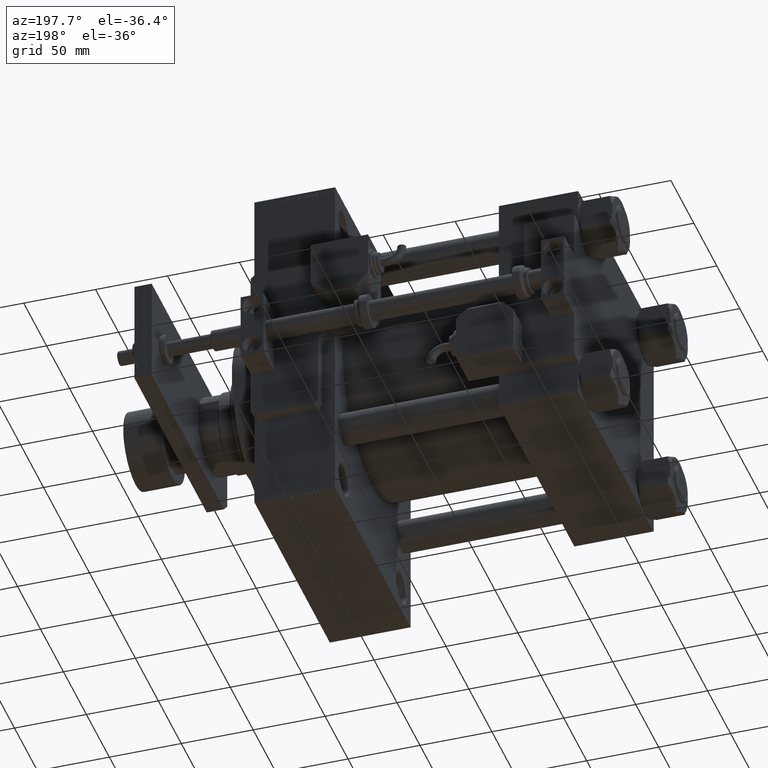
[diagram: clean part render]
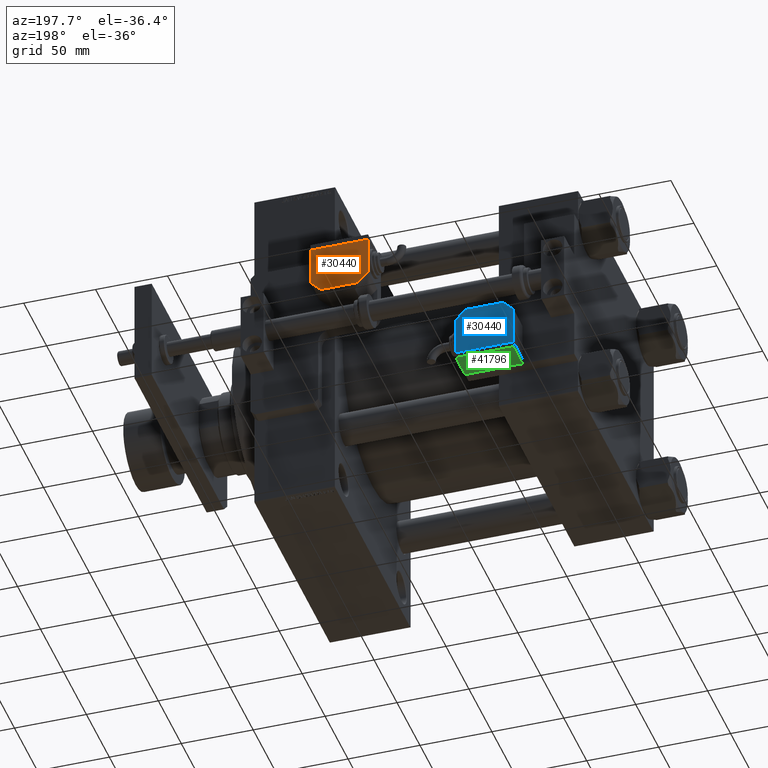
[diagram: same view with three faces highlighted in distinct colors, each labeled with its STEP entity id]
A machine part, auxiliary view with three faces highlighted in distinct colors.
Their STEP definitions:

[orange] entity #30440 — the highlighted planar face has unit normal (-0, 1, -0).
#558 = VERTEX_POINT ( 'NONE', #27781 ) ;
#1212 = VECTOR ( 'NONE', #5521, 1000.000000000000114 ) ;
#1815 = VECTOR ( 'NONE', #12514, 1000.000000000000000 ) ;
#2854 = LINE ( 'NONE', #19233, #49040 ) ;
#2965 = CARTESIAN_POINT ( 'NONE',  ( -19.99999999999993960, 13.49999999999986500, 10.00000000000000000 ) ) ;
#3285 = CARTESIAN_POINT ( 'NONE',  ( 12.99999999999999112, 20.50000000000009592, 10.00000000000000000 ) ) ;
#4728 = EDGE_CURVE ( 'NONE', #46785, #10609, #10763, .T. ) ;
#4824 = CARTESIAN_POINT ( 'NONE',  ( -19.99999999999993960, 13.49999999999986500, 10.00000000000000000 ) ) ;
#5038 = DIRECTION ( 'NONE',  ( -1.284980352575421081E-16, -1.000000000000000000, -0.000000000000000000 ) ) ;
#5521 = DIRECTION ( 'NONE',  ( -0.7071067811865479058, 0.7071067811865470176, -0.000000000000000000 ) ) ;
#8018 = AXIS2_PLACEMENT_3D ( 'NONE', #51463, #34305, #34593 ) ;
#8897 = VERTEX_POINT ( 'NONE', #13429 ) ;
#9116 = ORIENTED_EDGE ( 'NONE', *, *, #17609, .T. ) ;
#9415 = ORIENTED_EDGE ( 'NONE', *, *, #18502, .T. ) ;
#9439 = CARTESIAN_POINT ( 'NONE',  ( -19.99999999999994316, -13.49999999999996092, 10.00000000000000000 ) ) ;
#9819 = ORIENTED_EDGE ( 'NONE', *, *, #50053, .T. ) ;
#10484 = VECTOR ( 'NONE', #5038, 1000.000000000000000 ) ;
#10609 = VERTEX_POINT ( 'NONE', #25549 ) ;
#10763 = LINE ( 'NONE', #19720, #16137 ) ;
#12256 = LINE ( 'NONE', #36748, #1815 ) ;
#12514 = DIRECTION ( 'NONE',  ( -1.000000000000000000, 0.000000000000000000, 0.000000000000000000 ) ) ;
#13429 = CARTESIAN_POINT ( 'NONE',  ( -19.99999999999994316, -13.49999999999996092, 10.00000000000000000 ) ) ;
#16137 = VECTOR ( 'NONE', #23011, 1000.000000000000000 ) ;
#17609 = EDGE_CURVE ( 'NONE', #10609, #8897, #35290, .T. ) ;
#17792 = LINE ( 'NONE', #29758, #1212 ) ;
#18502 = EDGE_CURVE ( 'NONE', #8897, #37845, #38822, .T. ) ;
#19233 = CARTESIAN_POINT ( 'NONE',  ( 20.00000000000005329, -13.49999999999996092, 10.00000000000000000 ) ) ;
#19720 = CARTESIAN_POINT ( 'NONE',  ( -19.99999999999994316, -13.49999999999996092, 10.00000000000000000 ) ) ;
#20018 = DIRECTION ( 'NONE',  ( 1.284980352575412699E-16, 1.000000000000000000, 0.000000000000000000 ) ) ;
#22161 = EDGE_CURVE ( 'NONE', #27344, #42164, #12256, .T. ) ;
#23011 = DIRECTION ( 'NONE',  ( -1.284980352575421081E-16, -1.000000000000000000, -0.000000000000000000 ) ) ;
#25549 = CARTESIAN_POINT ( 'NONE',  ( -19.99999999999993960, 2.569960705150834076E-15, 10.00000000000000000 ) ) ;
#25756 = CARTESIAN_POINT ( 'NONE',  ( -19.99999999999994316, -13.49999999999996092, 10.00000000000000000 ) ) ;
#26839 = VECTOR ( 'NONE', #39232, 1000.000000000000000 ) ;
#27344 = VERTEX_POINT ( 'NONE', #3285 ) ;
#27781 = CARTESIAN_POINT ( 'NONE',  ( 20.00000000000005684, 13.50000000000003730, 10.00000000000000000 ) ) ;
#29380 = CARTESIAN_POINT ( 'NONE',  ( -12.99999999999994138, 20.50000000000009592, 10.00000000000000000 ) ) ;
#29477 = VECTOR ( 'NONE', #35025, 1000.000000000000000 ) ;
#29758 = CARTESIAN_POINT ( 'NONE',  ( 9.999999999999984013, 23.50000000000009592, 10.00000000000000000 ) ) ;
#30440 = ADVANCED_FACE ( 'NONE', ( #38647 ), #33757, .T. ) ;
#31860 = LINE ( 'NONE', #2965, #26839 ) ;
#33757 = PLANE ( 'NONE',  #8018 ) ;
#33843 = ORIENTED_EDGE ( 'NONE', *, *, #37589, .T. ) ;
#34305 = DIRECTION ( 'NONE',  ( 0.000000000000000000, 0.000000000000000000, 1.000000000000000000 ) ) ;
#34593 = DIRECTION ( 'NONE',  ( 1.000000000000000000, 0.000000000000000000, -0.000000000000000000 ) ) ;
#35025 = DIRECTION ( 'NONE',  ( 1.000000000000000000, 0.000000000000000000, 0.000000000000000000 ) ) ;
#35072 = EDGE_CURVE ( 'NONE', #37845, #558, #2854, .T. ) ;
#35290 = LINE ( 'NONE', #25756, #10484 ) ;
#36748 = CARTESIAN_POINT ( 'NONE',  ( -10.00000000000004086, 20.50000000000009592, 10.00000000000000000 ) ) ;
#37038 = ORIENTED_EDGE ( 'NONE', *, *, #35072, .T. ) ;
#37589 = EDGE_CURVE ( 'NONE', #558, #27344, #17792, .T. ) ;
#37592 = CARTESIAN_POINT ( 'NONE',  ( 20.00000000000005329, -13.49999999999996092, 10.00000000000000000 ) ) ;
#37845 = VERTEX_POINT ( 'NONE', #37592 ) ;
#38647 = FACE_OUTER_BOUND ( 'NONE', #47300, .T. ) ;
#38822 = LINE ( 'NONE', #9439, #29477 ) ;
#39232 = DIRECTION ( 'NONE',  ( -0.7071067811865356934, -0.7071067811865593411, -0.000000000000000000 ) ) ;
#42164 = VERTEX_POINT ( 'NONE', #29380 ) ;
#46785 = VERTEX_POINT ( 'NONE', #4824 ) ;
#47300 = EDGE_LOOP ( 'NONE', ( #33843, #52970, #9819, #50579, #9116, #9415, #37038 ) ) ;
#49040 = VECTOR ( 'NONE', #20018, 1000.000000000000000 ) ;
#50053 = EDGE_CURVE ( 'NONE', #42164, #46785, #31860, .T. ) ;
#50579 = ORIENTED_EDGE ( 'NONE', *, *, #4728, .T. ) ;
#51463 = CARTESIAN_POINT ( 'NONE',  ( 0.000000000000000000, 0.000000000000000000, 10.00000000000000000 ) ) ;
#52970 = ORIENTED_EDGE ( 'NONE', *, *, #22161, .T. ) ;

[blue] entity #30440 — the highlighted planar face has unit normal (0, 1, 0).
#558 = VERTEX_POINT ( 'NONE', #27781 ) ;
#1212 = VECTOR ( 'NONE', #5521, 1000.000000000000114 ) ;
#1815 = VECTOR ( 'NONE', #12514, 1000.000000000000000 ) ;
#2854 = LINE ( 'NONE', #19233, #49040 ) ;
#2965 = CARTESIAN_POINT ( 'NONE',  ( -19.99999999999993960, 13.49999999999986500, 10.00000000000000000 ) ) ;
#3285 = CARTESIAN_POINT ( 'NONE',  ( 12.99999999999999112, 20.50000000000009592, 10.00000000000000000 ) ) ;
#4728 = EDGE_CURVE ( 'NONE', #46785, #10609, #10763, .T. ) ;
#4824 = CARTESIAN_POINT ( 'NONE',  ( -19.99999999999993960, 13.49999999999986500, 10.00000000000000000 ) ) ;
#5038 = DIRECTION ( 'NONE',  ( -1.284980352575421081E-16, -1.000000000000000000, -0.000000000000000000 ) ) ;
#5521 = DIRECTION ( 'NONE',  ( -0.7071067811865479058, 0.7071067811865470176, -0.000000000000000000 ) ) ;
#8018 = AXIS2_PLACEMENT_3D ( 'NONE', #51463, #34305, #34593 ) ;
#8897 = VERTEX_POINT ( 'NONE', #13429 ) ;
#9116 = ORIENTED_EDGE ( 'NONE', *, *, #17609, .T. ) ;
#9415 = ORIENTED_EDGE ( 'NONE', *, *, #18502, .T. ) ;
#9439 = CARTESIAN_POINT ( 'NONE',  ( -19.99999999999994316, -13.49999999999996092, 10.00000000000000000 ) ) ;
#9819 = ORIENTED_EDGE ( 'NONE', *, *, #50053, .T. ) ;
#10484 = VECTOR ( 'NONE', #5038, 1000.000000000000000 ) ;
#10609 = VERTEX_POINT ( 'NONE', #25549 ) ;
#10763 = LINE ( 'NONE', #19720, #16137 ) ;
#12256 = LINE ( 'NONE', #36748, #1815 ) ;
#12514 = DIRECTION ( 'NONE',  ( -1.000000000000000000, 0.000000000000000000, 0.000000000000000000 ) ) ;
#13429 = CARTESIAN_POINT ( 'NONE',  ( -19.99999999999994316, -13.49999999999996092, 10.00000000000000000 ) ) ;
#16137 = VECTOR ( 'NONE', #23011, 1000.000000000000000 ) ;
#17609 = EDGE_CURVE ( 'NONE', #10609, #8897, #35290, .T. ) ;
#17792 = LINE ( 'NONE', #29758, #1212 ) ;
#18502 = EDGE_CURVE ( 'NONE', #8897, #37845, #38822, .T. ) ;
#19233 = CARTESIAN_POINT ( 'NONE',  ( 20.00000000000005329, -13.49999999999996092, 10.00000000000000000 ) ) ;
#19720 = CARTESIAN_POINT ( 'NONE',  ( -19.99999999999994316, -13.49999999999996092, 10.00000000000000000 ) ) ;
#20018 = DIRECTION ( 'NONE',  ( 1.284980352575412699E-16, 1.000000000000000000, 0.000000000000000000 ) ) ;
#22161 = EDGE_CURVE ( 'NONE', #27344, #42164, #12256, .T. ) ;
#23011 = DIRECTION ( 'NONE',  ( -1.284980352575421081E-16, -1.000000000000000000, -0.000000000000000000 ) ) ;
#25549 = CARTESIAN_POINT ( 'NONE',  ( -19.99999999999993960, 2.569960705150834076E-15, 10.00000000000000000 ) ) ;
#25756 = CARTESIAN_POINT ( 'NONE',  ( -19.99999999999994316, -13.49999999999996092, 10.00000000000000000 ) ) ;
#26839 = VECTOR ( 'NONE', #39232, 1000.000000000000000 ) ;
#27344 = VERTEX_POINT ( 'NONE', #3285 ) ;
#27781 = CARTESIAN_POINT ( 'NONE',  ( 20.00000000000005684, 13.50000000000003730, 10.00000000000000000 ) ) ;
#29380 = CARTESIAN_POINT ( 'NONE',  ( -12.99999999999994138, 20.50000000000009592, 10.00000000000000000 ) ) ;
#29477 = VECTOR ( 'NONE', #35025, 1000.000000000000000 ) ;
#29758 = CARTESIAN_POINT ( 'NONE',  ( 9.999999999999984013, 23.50000000000009592, 10.00000000000000000 ) ) ;
#30440 = ADVANCED_FACE ( 'NONE', ( #38647 ), #33757, .T. ) ;
#31860 = LINE ( 'NONE', #2965, #26839 ) ;
#33757 = PLANE ( 'NONE',  #8018 ) ;
#33843 = ORIENTED_EDGE ( 'NONE', *, *, #37589, .T. ) ;
#34305 = DIRECTION ( 'NONE',  ( 0.000000000000000000, 0.000000000000000000, 1.000000000000000000 ) ) ;
#34593 = DIRECTION ( 'NONE',  ( 1.000000000000000000, 0.000000000000000000, -0.000000000000000000 ) ) ;
#35025 = DIRECTION ( 'NONE',  ( 1.000000000000000000, 0.000000000000000000, 0.000000000000000000 ) ) ;
#35072 = EDGE_CURVE ( 'NONE', #37845, #558, #2854, .T. ) ;
#35290 = LINE ( 'NONE', #25756, #10484 ) ;
#36748 = CARTESIAN_POINT ( 'NONE',  ( -10.00000000000004086, 20.50000000000009592, 10.00000000000000000 ) ) ;
#37038 = ORIENTED_EDGE ( 'NONE', *, *, #35072, .T. ) ;
#37589 = EDGE_CURVE ( 'NONE', #558, #27344, #17792, .T. ) ;
#37592 = CARTESIAN_POINT ( 'NONE',  ( 20.00000000000005329, -13.49999999999996092, 10.00000000000000000 ) ) ;
#37845 = VERTEX_POINT ( 'NONE', #37592 ) ;
#38647 = FACE_OUTER_BOUND ( 'NONE', #47300, .T. ) ;
#38822 = LINE ( 'NONE', #9439, #29477 ) ;
#39232 = DIRECTION ( 'NONE',  ( -0.7071067811865356934, -0.7071067811865593411, -0.000000000000000000 ) ) ;
#42164 = VERTEX_POINT ( 'NONE', #29380 ) ;
#46785 = VERTEX_POINT ( 'NONE', #4824 ) ;
#47300 = EDGE_LOOP ( 'NONE', ( #33843, #52970, #9819, #50579, #9116, #9415, #37038 ) ) ;
#49040 = VECTOR ( 'NONE', #20018, 1000.000000000000000 ) ;
#50053 = EDGE_CURVE ( 'NONE', #42164, #46785, #31860, .T. ) ;
#50579 = ORIENTED_EDGE ( 'NONE', *, *, #4728, .T. ) ;
#51463 = CARTESIAN_POINT ( 'NONE',  ( 0.000000000000000000, 0.000000000000000000, 10.00000000000000000 ) ) ;
#52970 = ORIENTED_EDGE ( 'NONE', *, *, #22161, .T. ) ;

[green] entity #41796 — the highlighted planar face has unit normal (-0, -0, 1).
#1418 = AXIS2_PLACEMENT_3D ( 'NONE', #7218, #44793, #23312 ) ;
#1526 = CARTESIAN_POINT ( 'NONE',  ( -19.99999999999994316, -17.49999999999996092, -9.999999999999998224 ) ) ;
#2280 = EDGE_LOOP ( 'NONE', ( #20687, #48335, #48393, #50811 ) ) ;
#2925 = VECTOR ( 'NONE', #15268, 1000.000000000000000 ) ;
#3881 = CARTESIAN_POINT ( 'NONE',  ( -19.99999999999994316, -17.49999999999996092, 10.00000000000000000 ) ) ;
#4620 = LINE ( 'NONE', #29963, #15260 ) ;
#6472 = EDGE_CURVE ( 'NONE', #37555, #40399, #44094, .T. ) ;
#6788 = DIRECTION ( 'NONE',  ( -0.000000000000000000, -0.000000000000000000, -1.000000000000000000 ) ) ;
#7218 = CARTESIAN_POINT ( 'NONE',  ( 0.000000000000000000, -17.49999999999996092, 0.000000000000000000 ) ) ;
#7285 = EDGE_CURVE ( 'NONE', #40399, #11668, #4620, .T. ) ;
#7309 = CARTESIAN_POINT ( 'NONE',  ( -19.99999999999994316, -17.49999999999996092, -9.999999999999998224 ) ) ;
#8220 = VECTOR ( 'NONE', #6788, 1000.000000000000000 ) ;
#9166 = CARTESIAN_POINT ( 'NONE',  ( 20.00000000000005329, -17.49999999999996092, -9.999999999999998224 ) ) ;
#11668 = VERTEX_POINT ( 'NONE', #9166 ) ;
#14280 = DIRECTION ( 'NONE',  ( 0.000000000000000000, 0.000000000000000000, 1.000000000000000000 ) ) ;
#15260 = VECTOR ( 'NONE', #29408, 1000.000000000000000 ) ;
#15268 = DIRECTION ( 'NONE',  ( -1.000000000000000000, -0.000000000000000000, -0.000000000000000000 ) ) ;
#17041 = VECTOR ( 'NONE', #14280, 1000.000000000000000 ) ;
#18994 = CARTESIAN_POINT ( 'NONE',  ( 20.00000000000005329, -17.49999999999996092, 10.00000000000000000 ) ) ;
#20687 = ORIENTED_EDGE ( 'NONE', *, *, #40848, .T. ) ;
#23312 = DIRECTION ( 'NONE',  ( 0.000000000000000000, -0.000000000000000000, 1.000000000000000000 ) ) ;
#29408 = DIRECTION ( 'NONE',  ( 1.000000000000000000, 0.000000000000000000, 0.000000000000000000 ) ) ;
#29963 = CARTESIAN_POINT ( 'NONE',  ( -19.99999999999994316, -17.49999999999996092, -9.999999999999998224 ) ) ;
#33523 = EDGE_CURVE ( 'NONE', #52274, #37555, #40034, .T. ) ;
#35767 = LINE ( 'NONE', #51578, #17041 ) ;
#36357 = PLANE ( 'NONE',  #1418 ) ;
#37555 = VERTEX_POINT ( 'NONE', #3881 ) ;
#40034 = LINE ( 'NONE', #48997, #2925 ) ;
#40176 = FACE_OUTER_BOUND ( 'NONE', #2280, .T. ) ;
#40399 = VERTEX_POINT ( 'NONE', #1526 ) ;
#40848 = EDGE_CURVE ( 'NONE', #11668, #52274, #35767, .T. ) ;
#41796 = ADVANCED_FACE ( 'NONE', ( #40176 ), #36357, .F. ) ;
#44094 = LINE ( 'NONE', #7309, #8220 ) ;
#44793 = DIRECTION ( 'NONE',  ( 0.000000000000000000, 1.000000000000000000, 0.000000000000000000 ) ) ;
#48335 = ORIENTED_EDGE ( 'NONE', *, *, #33523, .T. ) ;
#48393 = ORIENTED_EDGE ( 'NONE', *, *, #6472, .T. ) ;
#48997 = CARTESIAN_POINT ( 'NONE',  ( -19.99999999999994316, -17.49999999999996092, 10.00000000000000000 ) ) ;
#50811 = ORIENTED_EDGE ( 'NONE', *, *, #7285, .T. ) ;
#51578 = CARTESIAN_POINT ( 'NONE',  ( 20.00000000000005329, -17.49999999999996092, -9.999999999999998224 ) ) ;
#52274 = VERTEX_POINT ( 'NONE', #18994 ) ;